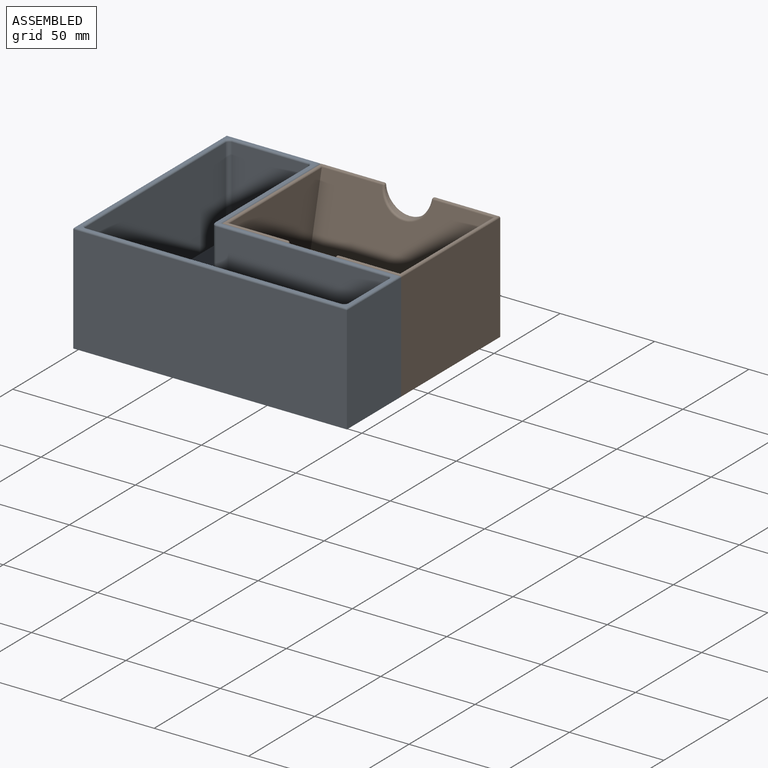
[diagram: assembled view]
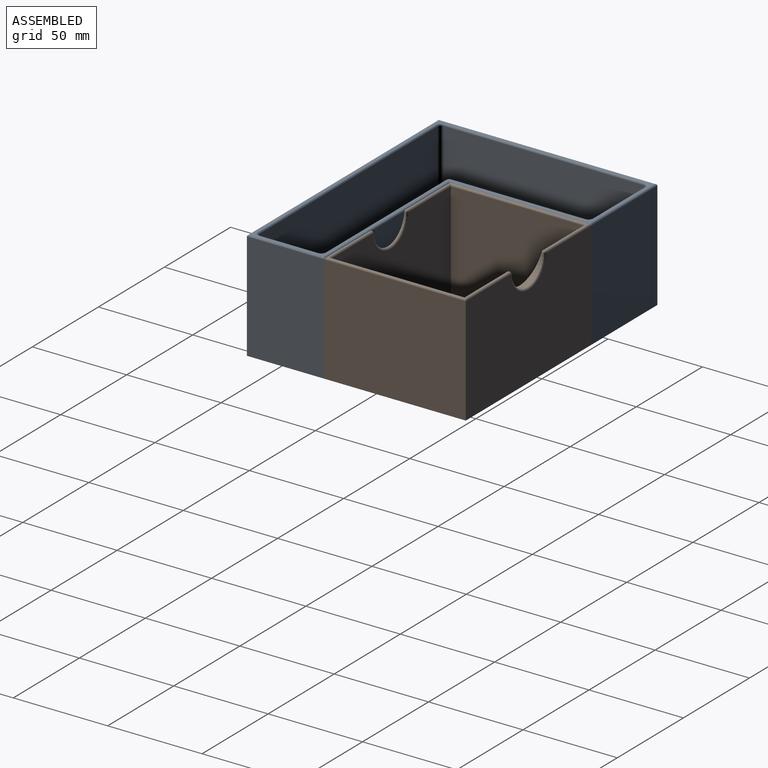
[diagram: assembled view, second angle]
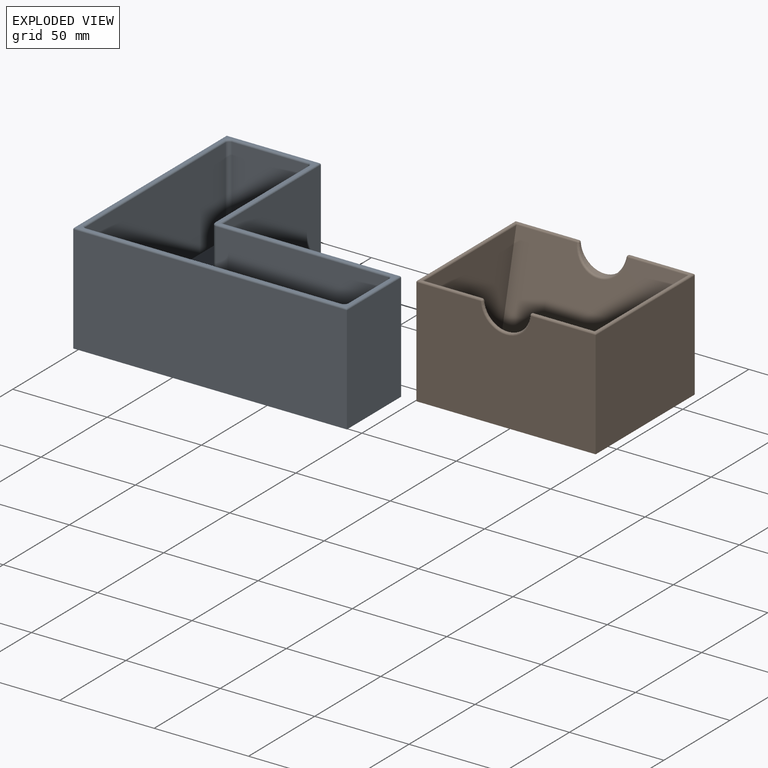
[diagram: exploded view]
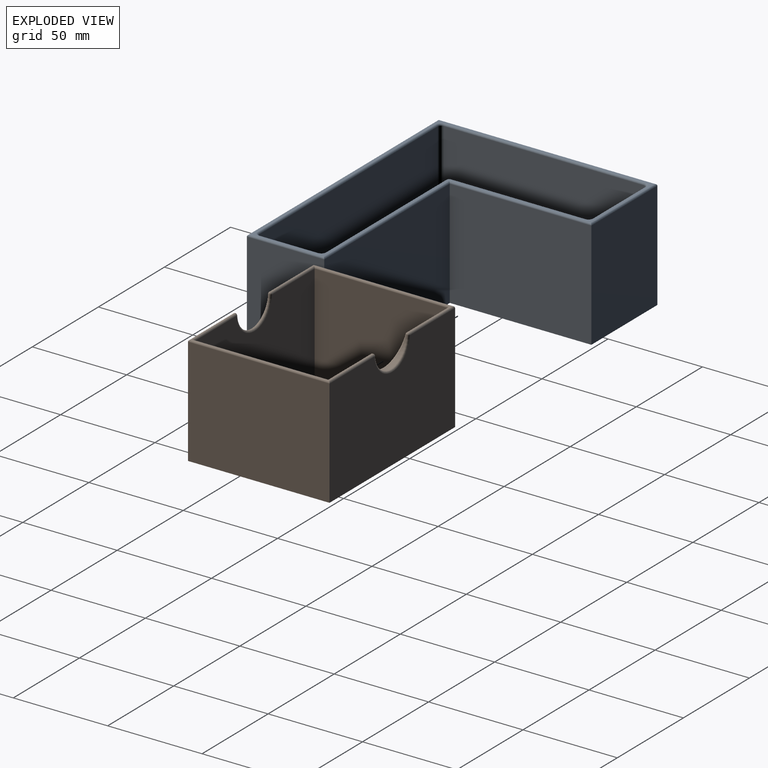
[diagram: exploded view, second angle]
ASSEMBLY  parts=2 mates=3
PART A: 59 faces, bbox 145x116x58 mm
  f0: plane 143x114mm, normal (0,0,1), area 519.4mm2, adj f41,f42,f43,f44,f45,f46,f47,f48
  f1: plane 57x50mm, normal (0,1,0), area 2850mm2, adj f2,f6,f7,f55
  f2: plane 116x57mm, normal (-1,0,0), area 6612mm2, adj f1,f3,f7,f53
  f3: plane 145x57mm, normal (0,-1,0), area 8265mm2, adj f2,f4,f7,f54
  f4: plane 57x41mm, normal (1,0,0), area 2337mm2, adj f3,f5,f7,f56
  f5: plane 95x57mm, normal (0,1,0), area 5415mm2, adj f4,f6,f7,f58
  f6: plane 75x57mm, normal (1,0,0), area 4275mm2, adj f1,f5,f7,f57
  f7: plane 145x116mm, normal (0,0,-1), area 9695mm2, adj f1,f2,f3,f4,f5,f6
  f8: plane 46x40mm, normal (0,-1,0), area 1840mm2, adj f14,f38,f40,f51
  f9: plane 106x46mm, normal (1,0,0), area 4876mm2, adj f14,f35,f40,f50
  f10: plane 135x46mm, normal (0,1,0), area 6210mm2, adj f14,f35,f36,f46
  f11: plane 46x31mm, normal (-1,0,0), area 1426mm2, adj f14,f36,f39,f42
  f12: plane 91x46mm, normal (0,-1,0), area 4186mm2, adj f14,f37,f39,f43
  f13: plane 71x46mm, normal (-1,0,0), area 3266mm2, adj f14,f37,f38,f47
  f14: plane 139x110mm, normal (0,0,1), area 5506.9mm2, adj f8,f9,f10,f11,f12,f13,f15,f17
  f15: cylinder r=13mm len=26mm, axis (0,0,1), area 81.7mm2, adj f14,f16
  f16: plane 26x26mm, normal (0,0,1), area 452.4mm2, adj f15,f33
  f17: cylinder r=13mm len=26mm, axis (0,0,1), area 81.7mm2, adj f14,f18
  f18: plane 26x26mm, normal (0,0,1), area 452.4mm2, adj f17,f31
  f19: cylinder r=13mm len=26mm, axis (0,0,1), area 81.7mm2, adj f14,f20
  f20: plane 26x26mm, normal (0,0,1), area 452.4mm2, adj f19,f29
  f21: cylinder r=13mm len=26mm, axis (0,0,1), area 81.7mm2, adj f14,f22
  f22: plane 26x26mm, normal (0,0,1), area 452.4mm2, adj f21,f27
  f23: cylinder r=13mm len=26mm, axis (0,0,1), area 81.7mm2, adj f14,f24
  f24: plane 26x26mm, normal (0,0,1), area 452.4mm2, adj f23,f25
  f25: cylinder r=5mm len=10mm, axis (0,0,1), area 62.8mm2, adj f24,f26
  f26: plane 10x10mm, normal (0,0,1), area 78.5mm2, adj f25
  f27: cylinder r=5mm len=10mm, axis (0,0,1), area 62.8mm2, adj f22,f28
  f28: plane 10x10mm, normal (0,0,1), area 78.5mm2, adj f27
  f29: cylinder r=5mm len=10mm, axis (0,0,1), area 62.8mm2, adj f20,f30
  f30: plane 10x10mm, normal (0,0,1), area 78.5mm2, adj f29
  f31: cylinder r=5mm len=10mm, axis (0,0,1), area 62.8mm2, adj f18,f32
  f32: plane 10x10mm, normal (0,0,1), area 78.5mm2, adj f31
  f33: cylinder r=5mm len=10mm, axis (0,0,1), area 62.8mm2, adj f16,f34
  f34: plane 10x10mm, normal (0,0,1), area 78.5mm2, adj f33
  f35: cylinder r=2mm len=46mm, axis (0,0,1), area 144.5mm2, adj f9,f10,f14,f48
  f36: cylinder r=2mm len=46mm, axis (0,0,-1), area 144.5mm2, adj f10,f11,f14,f44
  f37: cylinder r=2mm len=46mm, axis (0,0,1), area 144.5mm2, adj f12,f13,f14,f45
  f38: cylinder r=2mm len=46mm, axis (0,0,1), area 144.5mm2, adj f8,f13,f14,f49
  f39: cylinder r=2mm len=46mm, axis (0,0,-1), area 144.5mm2, adj f11,f12,f14,f41
  f40: cylinder r=2mm len=46mm, axis (0,0,-1), area 144.5mm2, adj f8,f9,f14,f52
  f41: torus R=3mm, axis (0,0,1), area 5.8mm2, adj f0,f39,f42,f43
  f42: cylinder r=1mm len=31mm, axis (0,1,0), area 48.7mm2, adj f0,f11,f41,f44
  f43: cylinder r=1mm len=91mm, axis (-1,0,0), area 142.9mm2, adj f0,f12,f41,f45
  f44: torus R=3mm, axis (0,0,1), area 5.8mm2, adj f0,f36,f42,f46
  f45: torus R=1mm, axis (0,0,1), area 4mm2, adj f0,f37,f43,f47
  f46: cylinder r=1mm len=135mm, axis (1,0,0), area 212.1mm2, adj f0,f10,f44,f48
  f47: cylinder r=1mm len=71mm, axis (0,1,0), area 111.5mm2, adj f0,f13,f45,f49
  f48: torus R=3mm, axis (0,0,1), area 5.8mm2, adj f0,f35,f46,f50
  f49: torus R=3mm, axis (0,0,1), area 5.8mm2, adj f0,f38,f47,f51
  f50: cylinder r=1mm len=106mm, axis (0,-1,0), area 166.5mm2, adj f0,f9,f48,f52
  f51: cylinder r=1mm len=40mm, axis (-1,0,0), area 62.8mm2, adj f0,f8,f49,f52
  f52: torus R=3mm, axis (0,0,1), area 5.8mm2, adj f0,f40,f50,f51
  f53: cylinder r=1mm len=116mm, axis (0,1,0), area 181.1mm2, adj f0,f2,f54,f55
  f54: cylinder r=1mm len=145mm, axis (-1,0,0), area 226.6mm2, adj f0,f3,f53,f56
  f55: cylinder r=1mm len=50mm, axis (1,0,0), area 77.4mm2, adj f0,f1,f53,f57
  f56: cylinder r=1mm len=41mm, axis (0,-1,0), area 63.3mm2, adj f0,f4,f54,f58
  f57: cylinder r=1mm len=76mm, axis (0,-1,0), area 117.8mm2, adj f0,f6,f55,f58
  f58: cylinder r=1mm len=96mm, axis (1,0,0), area 149.2mm2, adj f0,f5,f56,f57
PART B: 261 faces, bbox 95x75x58 mm
  f0: plane 91x58mm, normal (0,0,1), area 4798.4mm2, adj f9,f10,f11,f12,f13,f14,f15,f16
  f1: cylinder r=12.5mm len=24.93mm, axis (0,-1,0), area 77.1mm2, adj f251,f254,f257,f260
  f2: plane 33.04x0.21mm, normal (0,0,1), area 6.8mm2, adj f249,f250,f256,f257
  f3: plane 95x57mm, normal (0,-1,0), area 5155.7mm2, adj f5,f6,f8,f242,f245,f246
  f4: plane 95x57mm, normal (0,1,0), area 5155.7mm2, adj f5,f6,f8,f247,f250,f251
  f5: plane 75x57mm, normal (-1,0,0), area 4275mm2, adj f3,f4,f8,f249
  f6: plane 75x57mm, normal (1,0,0), area 4275mm2, adj f3,f4,f8,f248
  f7: plane 33.04x0.21mm, normal (0,0,1), area 6.8mm2, adj f247,f248,f254,f255
  f8: plane 95x75mm, normal (0,0,-1), area 7125mm2, adj f3,f4,f5,f6
  f9: plane 91x55mm, normal (0,1,0), area 4745.7mm2, adj f0,f10,f11,f242,f245,f246
  f10: plane 70.77x55mm, normal (1,0,0), area 3541.1mm2, adj f0,f9,f12,f249
  f11: plane 70.77x55mm, normal (-1,0,0), area 3541.1mm2, adj f0,f9,f12,f248
  f12: plane 91.05x55.23mm, normal (0,-0.97,0.23), area 4893mm2, adj f0,f10,f11,f248,f249,f255,f256,f260
  f13: extruded ~2x1mm, area 2.3mm2, adj f0,f14,f37,f38
  f14: extruded ~1.62x1mm, area 1.8mm2, adj f0,f13,f15,f38
  f15: extruded ~2.1x1.17mm, area 2.4mm2, adj f0,f14,f16,f38
  f16: extruded ~1.35x1mm, area 1.5mm2, adj f0,f15,f17,f38
  f17: extruded ~1x0.63mm, area 0.9mm2, adj f0,f16,f18,f38
  f18: extruded ~1x0.83mm, area 0.9mm2, adj f0,f17,f19,f38
  f19: extruded ~1.07x1mm, area 1.2mm2, adj f0,f18,f20,f38
  f20: extruded ~1.4x1mm, area 1.5mm2, adj f0,f19,f21,f38
  f21: extruded ~2.34x1mm, area 2.4mm2, adj f0,f20,f22,f38
  f22: plane 1x0.98mm, normal (-0.94,0.34,0), area 1mm2, adj f0,f21,f23,f38
  f23: extruded ~2.66x1mm, area 2.7mm2, adj f0,f22,f24,f38
  f24: extruded ~2.23x1mm, area 2.4mm2, adj f0,f23,f25,f38
  f25: extruded ~1.78x1mm, area 2mm2, adj f0,f24,f26,f38
  f26: extruded ~1.73x1mm, area 1.9mm2, adj f0,f25,f27,f38
  f27: extruded ~1.93x1.15mm, area 2.3mm2, adj f0,f26,f28,f38
  f28: extruded ~1.44x1mm, area 1.6mm2, adj f0,f27,f29,f38
  f29: extruded ~1x0.68mm, area 0.9mm2, adj f0,f28,f30,f38
  f30: extruded ~1x0.83mm, area 0.9mm2, adj f0,f29,f31,f38
  f31: extruded ~1.19x1mm, area 1.4mm2, adj f0,f30,f32,f38
  f32: extruded ~1.7x1mm, area 1.8mm2, adj f0,f31,f33,f38
  f33: extruded ~1.39x1mm, area 1.4mm2, adj f0,f32,f34,f38
  f34: extruded ~1.3x1mm, area 1.4mm2, adj f0,f33,f35,f38
  f35: plane 1.09x1mm, normal (1,0,0), area 1.1mm2, adj f0,f34,f36,f38
  f36: extruded ~2.65x1mm, area 2.7mm2, adj f0,f35,f37,f38
  f37: extruded ~2.52x1mm, area 2.7mm2, adj f0,f13,f36,f38
  f38: plane 9.97x6.1mm, normal (0,0,1), area 21.8mm2, adj f13,f14,f15,f16,f17,f18,f19,f20
  f39: extruded ~2.52x1.06mm, area 2.8mm2, adj f0,f40,f53,f54
  f40: extruded ~2.2x1mm, area 2.3mm2, adj f0,f39,f41,f54
  f41: plane 1x0.97mm, normal (-0.9,0.44,0), area 1.1mm2, adj f0,f40,f42,f54
  f42: extruded ~2.67x1mm, area 2.7mm2, adj f0,f41,f43,f54
  f43: extruded ~2.49x1mm, area 2.6mm2, adj f0,f42,f44,f54
  f44: extruded ~1.74x1.62mm, area 2.4mm2, adj f0,f43,f45,f54
  f45: extruded ~2.63x1mm, area 2.7mm2, adj f0,f44,f46,f54
  f46: extruded ~3.7x1.16mm, area 4mm2, adj f0,f45,f47,f54
  f47: extruded ~3.31x1.3mm, area 3.7mm2, adj f0,f46,f48,f54
  f48: extruded ~2.49x1mm, area 2.5mm2, adj f0,f47,f49,f54
  f49: plane 1x0.99mm, normal (-1,0,0), area 1mm2, adj f0,f48,f50,f54
  f50: extruded ~2.32x1mm, area 2.4mm2, adj f0,f49,f51,f54
  f51: extruded ~2.54x1.04mm, area 2.8mm2, adj f0,f50,f52,f54
  f52: extruded ~2.94x1mm, area 3.1mm2, adj f0,f51,f53,f54
  f53: extruded ~2.92x1mm, area 3.1mm2, adj f0,f39,f52,f54
  f54: plane 9.97x7.34mm, normal (0,0,1), area 20.6mm2, adj f39,f40,f41,f42,f43,f44,f45,f46
  f55: plane 5.53x1mm, normal (0,1,0), area 5.5mm2, adj f0,f56,f66,f67
  f56: plane 1.03x1mm, normal (-1,0,0), area 1mm2, adj f0,f55,f57,f67
  f57: plane 4.38x1mm, normal (0,-1,0), area 4.4mm2, adj f0,f56,f58,f67
  f58: plane 3.65x1mm, normal (-1,0,0), area 3.6mm2, adj f0,f57,f59,f67
  f59: plane 4.11x1mm, normal (0,1,0), area 4.1mm2, adj f0,f58,f60,f67
  f60: plane 1.02x1mm, normal (-1,0,0), area 1mm2, adj f0,f59,f61,f67
  f61: plane 4.11x1mm, normal (0,-1,0), area 4.1mm2, adj f0,f60,f62,f67
  f62: plane 3.19x1mm, normal (-1,0,0), area 3.2mm2, adj f0,f61,f63,f67
  f63: plane 4.38x1mm, normal (0,1,0), area 4.4mm2, adj f0,f62,f64,f67
  f64: plane 1.02x1mm, normal (-1,0,0), area 1mm2, adj f0,f63,f65,f67
  f65: plane 5.53x1mm, normal (0,-1,0), area 5.5mm2, adj f0,f64,f66,f67
  f66: plane 9.92x1mm, normal (1,0,0), area 9.9mm2, adj f0,f55,f65,f67
  f67: plane 9.92x5.53mm, normal (0,0,1), area 24.6mm2, adj f55,f56,f57,f58,f59,f60,f61,f62
  f68: plane 1.15x1mm, normal (0,1,0), area 1.2mm2, adj f0,f69,f75,f76
  f69: plane 8.89x1mm, normal (-1,0,0), area 8.9mm2, adj f0,f68,f70,f76
  f70: plane 3.14x1mm, normal (0,1,0), area 3.1mm2, adj f0,f69,f71,f76
  f71: plane 1.02x1mm, normal (-1,0,0), area 1mm2, adj f0,f70,f72,f76
  f72: plane 7.43x1mm, normal (0,-1,0), area 7.4mm2, adj f0,f71,f73,f76
  f73: plane 1.02x1mm, normal (1,0,0), area 1mm2, adj f0,f72,f74,f76
  f74: plane 3.14x1mm, normal (0,1,0), area 3.1mm2, adj f0,f73,f75,f76
  f75: plane 8.89x1mm, normal (1,0,0), area 8.9mm2, adj f0,f68,f74,f76
  f76: plane 9.92x7.43mm, normal (0,0,1), area 17.9mm2, adj f68,f69,f70,f71,f72,f73,f74,f75
  f77: plane 1.32x1mm, normal (0,1,0), area 1.3mm2, adj f0,f78,f91,f92
  f78: plane 9.92x1mm, normal (-1,0,0), area 9.9mm2, adj f0,f77,f79,f92
  f79: plane 1.08x1mm, normal (0,-1,0), area 1.1mm2, adj f0,f78,f80,f92
  f80: plane 5.69x1mm, normal (1,0,0), area 5.7mm2, adj f0,f79,f81,f92
  f81: extruded ~1.42x1mm, area 1.4mm2, adj f0,f80,f82,f92
  f82: extruded ~1.18x1mm, area 1.2mm2, adj f0,f81,f83,f92
  f83: plane 1x0.05mm, normal (0,-1,0), area 0.1mm2, adj f0,f82,f84,f92
  f84: plane 8.29x5.41mm, normal (-0.84,-0.55,0), area 9.9mm2, adj f0,f83,f85,f92
  f85: plane 1.3x1mm, normal (0,-1,0), area 1.3mm2, adj f0,f84,f86,f92
  f86: plane 9.92x1mm, normal (1,0,0), area 9.9mm2, adj f0,f85,f87,f92
  f87: plane 1.07x1mm, normal (0,1,0), area 1.1mm2, adj f0,f86,f88,f92
  f88: plane 5.64x1mm, normal (-1,0,0), area 5.6mm2, adj f0,f87,f89,f92
  f89: extruded ~2.68x1mm, area 2.7mm2, adj f0,f88,f90,f92
  f90: plane 1x0.05mm, normal (0,1,0), area 0.1mm2, adj f0,f89,f91,f92
  f91: plane 8.32x5.42mm, normal (0.84,0.55,0), area 9.9mm2, adj f0,f77,f90,f92
  f92: plane 9.92x7.75mm, normal (0,0,1), area 32.5mm2, adj f77,f78,f79,f80,f81,f82,f83,f84
  f93: plane 6.42x1mm, normal (-1,0,0), area 6.4mm2, adj f0,f94,f106,f107
  f94: plane 1.15x1mm, normal (0,-1,0), area 1.2mm2, adj f0,f93,f95,f107
  f95: plane 6.46x1mm, normal (1,0,0), area 6.5mm2, adj f0,f94,f96,f107
  f96: extruded ~1.92x1mm, area 2.1mm2, adj f0,f95,f97,f107
  f97: extruded ~1.93x1mm, area 2.1mm2, adj f0,f96,f98,f107
  f98: extruded ~1.99x1mm, area 2.2mm2, adj f0,f97,f99,f107
  f99: extruded ~1.91x1mm, area 2.1mm2, adj f0,f98,f100,f107
  f100: plane 6.47x1mm, normal (-1,0,0), area 6.5mm2, adj f0,f99,f101,f107
  f101: plane 1.15x1mm, normal (0,-1,0), area 1.2mm2, adj f0,f100,f102,f107
  f102: plane 6.39x1mm, normal (1,0,0), area 6.4mm2, adj f0,f101,f103,f107
  f103: extruded ~2.69x1mm, area 2.9mm2, adj f0,f102,f104,f107
  f104: extruded ~2.77x1mm, area 3mm2, adj f0,f103,f105,f107
  f105: extruded ~2.81x1mm, area 3.1mm2, adj f0,f104,f106,f107
  f106: extruded ~2.67x1.02mm, area 2.9mm2, adj f0,f93,f105,f107
  f107: plane 10.05x7.59mm, normal (0,0,1), area 25.9mm2, adj f93,f94,f95,f96,f97,f98,f99,f100
  f108: extruded ~2.58x1.09mm, area 2.9mm2, adj f0,f109,f122,f123
  f109: extruded ~2.25x1mm, area 2.3mm2, adj f0,f108,f110,f123
  f110: plane 1x0.99mm, normal (-0.9,0.44,0), area 1.1mm2, adj f0,f109,f111,f123
  f111: extruded ~2.73x1mm, area 2.8mm2, adj f0,f110,f112,f123
  f112: extruded ~2.55x1mm, area 2.7mm2, adj f0,f111,f113,f123
  f113: extruded ~1.78x1.65mm, area 2.5mm2, adj f0,f112,f114,f123
  f114: extruded ~2.68x1mm, area 2.8mm2, adj f0,f113,f115,f123
  f115: extruded ~3.78x1.19mm, area 4.1mm2, adj f0,f114,f116,f123
  f116: extruded ~3.38x1.33mm, area 3.7mm2, adj f0,f115,f117,f123
  f117: extruded ~2.54x1mm, area 2.6mm2, adj f0,f116,f118,f123
  f118: plane 1.01x1mm, normal (-1,0,0), area 1mm2, adj f0,f117,f119,f123
  f119: extruded ~2.37x1mm, area 2.4mm2, adj f0,f118,f120,f123
  f120: extruded ~2.6x1.06mm, area 2.9mm2, adj f0,f119,f121,f123
  f121: extruded ~3.01x1mm, area 3.2mm2, adj f0,f120,f122,f123
  f122: extruded ~2.98x1mm, area 3.2mm2, adj f0,f108,f121,f123
  f123: plane 10.19x7.5mm, normal (0,0,1), area 21.5mm2, adj f108,f109,f110,f111,f112,f113,f114,f115
  f124: plane 1.32x1mm, normal (0,1,0), area 1.3mm2, adj f0,f125,f138,f139
  f125: plane 9.92x1mm, normal (-1,0,0), area 9.9mm2, adj f0,f124,f126,f139
  f126: plane 1.08x1mm, normal (0,-1,0), area 1.1mm2, adj f0,f125,f127,f139
  f127: plane 5.69x1mm, normal (1,0,0), area 5.7mm2, adj f0,f126,f128,f139
  f128: extruded ~1.42x1mm, area 1.4mm2, adj f0,f127,f129,f139
  f129: extruded ~1.18x1mm, area 1.2mm2, adj f0,f128,f130,f139
  f130: plane 1x0.05mm, normal (0,-1,0), area 0.1mm2, adj f0,f129,f131,f139
  f131: plane 8.29x5.41mm, normal (-0.84,-0.55,0), area 9.9mm2, adj f0,f130,f132,f139
  f132: plane 1.3x1mm, normal (0,-1,0), area 1.3mm2, adj f0,f131,f133,f139
  f133: plane 9.92x1mm, normal (1,0,0), area 9.9mm2, adj f0,f132,f134,f139
  f134: plane 1.07x1mm, normal (0,1,0), area 1.1mm2, adj f0,f133,f135,f139
  f135: plane 5.64x1mm, normal (-1,0,0), area 5.6mm2, adj f0,f134,f136,f139
  f136: extruded ~2.68x1mm, area 2.7mm2, adj f0,f135,f137,f139
  f137: plane 1x0.05mm, normal (0,1,0), area 0.1mm2, adj f0,f136,f138,f139
  f138: plane 8.32x5.42mm, normal (0.84,0.55,0), area 9.9mm2, adj f0,f124,f137,f139
  f139: plane 9.92x7.75mm, normal (0,0,1), area 32.5mm2, adj f124,f125,f126,f127,f128,f129,f130,f131
  f140: extruded ~2.86x1mm, area 3.1mm2, adj f141,f153,f154,f237
  f141: extruded ~2.94x1.02mm, area 3.2mm2, adj f140,f142,f154,f237
  f142: extruded ~3.03x1mm, area 3.3mm2, adj f141,f143,f154,f237
  f143: plane 1.37x1mm, normal (0,-1,0), area 1.4mm2, adj f142,f144,f154,f237
  f144: plane 7.75x1mm, normal (-1,0,0), area 7.7mm2, adj f143,f145,f154,f237
  f145: plane 1.64x1mm, normal (0,1,0), area 1.6mm2, adj f144,f153,f154,f237
  f146: extruded ~3.67x1.3mm, area 4mm2, adj f0,f147,f152,f154
  f147: extruded ~3.5x1.25mm, area 3.8mm2, adj f0,f146,f148,f154
  f148: extruded ~3.52x1.25mm, area 3.8mm2, adj f0,f147,f149,f154
  f149: plane 2.97x1mm, normal (0,-1,0), area 3mm2, adj f0,f148,f150,f154
  f150: plane 9.7x1mm, normal (1,0,0), area 9.7mm2, adj f0,f149,f151,f154
  f151: plane 2.69x1mm, normal (0,1,0), area 2.7mm2, adj f0,f150,f152,f154
  f152: extruded ~3.75x1.27mm, area 4.1mm2, adj f0,f146,f151,f154
  f153: extruded ~2.83x1mm, area 3.1mm2, adj f140,f145,f154,f237
  f154: plane 9.7x7.74mm, normal (0,0,1), area 29.8mm2, adj f140,f141,f142,f143,f144,f145,f146,f147
  f155: plane 1.55x1mm, normal (0,-1,0), area 1.5mm2, adj f156,f172,f173,f238
  f156: plane 3.71x1mm, normal (-1,0,0), area 3.7mm2, adj f155,f157,f173,f238
  f157: plane 1.47x1mm, normal (0,1,0), area 1.5mm2, adj f156,f158,f173,f238
  f158: extruded ~1.82x1mm, area 1.9mm2, adj f157,f159,f173,f238
  f159: extruded ~1.39x1mm, area 1.6mm2, adj f158,f160,f173,f238
  f160: extruded ~1.42x1mm, area 1.6mm2, adj f159,f172,f173,f238
  f161: plane 4.03x1mm, normal (-1,0,0), area 4mm2, adj f0,f162,f171,f173
  f162: plane 2.03x1mm, normal (0,1,0), area 2mm2, adj f0,f161,f163,f173
  f163: plane 4.03x2.35mm, normal (0.86,0.5,0), area 4.7mm2, adj f0,f162,f164,f173
  f164: plane 1.33x1mm, normal (0,1,0), area 1.3mm2, adj f0,f163,f165,f173
  f165: plane 4.36x2.63mm, normal (-0.86,-0.52,0), area 5.1mm2, adj f0,f164,f166,f173
  f166: extruded ~2.6x1.95mm, area 3.5mm2, adj f0,f165,f167,f173
  f167: extruded ~2.06x1mm, area 2.3mm2, adj f0,f166,f168,f173
  f168: extruded ~2.64x1mm, area 2.8mm2, adj f0,f167,f169,f173
  f169: plane 2.66x1mm, normal (0,-1,0), area 2.7mm2, adj f0,f168,f170,f173
  f170: plane 9.7x1mm, normal (1,0,0), area 9.7mm2, adj f0,f169,f171,f173
  f171: plane 1.13x1mm, normal (0,1,0), area 1.1mm2, adj f0,f161,f170,f173
  f172: extruded ~1.75x1mm, area 1.9mm2, adj f155,f160,f173,f238
  f173: plane 9.7x6.83mm, normal (0,0,1), area 28.2mm2, adj f155,f156,f157,f158,f159,f160,f161,f162
  f174: plane 3.01x1.13mm, normal (0.94,0.35,0), area 3.2mm2, adj f175,f186,f187,f239
  f175: plane 3.14x1mm, normal (0,-1,0), area 3.1mm2, adj f174,f176,f187,f239
  f176: plane 3.01x1.14mm, normal (-0.94,0.35,0), area 3.2mm2, adj f175,f177,f187,f239
  f177: extruded ~1.4x1mm, area 1.5mm2, adj f176,f186,f187,f239
  f178: plane 3.09x1.21mm, normal (0.93,0.36,0), area 3.3mm2, adj f0,f179,f185,f187
  f179: plane 1.17x1mm, normal (0,1,0), area 1.2mm2, adj f0,f178,f180,f187
  f180: plane 9.74x3.82mm, normal (-0.93,-0.36,0), area 10.5mm2, adj f0,f179,f181,f187
  f181: plane 1x0.95mm, normal (0,-1,0), area 0.9mm2, adj f0,f180,f182,f187
  f182: plane 9.74x3.83mm, normal (0.93,-0.37,0), area 10.5mm2, adj f0,f181,f183,f187
  f183: plane 1.14x1mm, normal (0,1,0), area 1.1mm2, adj f0,f182,f184,f187
  f184: plane 3.09x1.19mm, normal (-0.93,0.36,0), area 3.3mm2, adj f0,f183,f185,f187
  f185: plane 3.89x1mm, normal (0,1,0), area 3.9mm2, adj f0,f178,f184,f187
  f186: extruded ~1.4x1mm, area 1.5mm2, adj f174,f177,f187,f239
  f187: plane 9.74x8.6mm, normal (0,0,1), area 24.2mm2, adj f174,f175,f176,f177,f178,f179,f180,f181
  f188: plane 1.58x1mm, normal (0,-1,0), area 1.6mm2, adj f189,f205,f206,f240
  f189: plane 3.79x1mm, normal (-1,0,0), area 3.8mm2, adj f188,f190,f206,f240
  f190: plane 1.5x1mm, normal (0,1,0), area 1.5mm2, adj f189,f191,f206,f240
  f191: extruded ~1.86x1mm, area 1.9mm2, adj f190,f192,f206,f240
  f192: extruded ~1.42x1mm, area 1.6mm2, adj f191,f193,f206,f240
  f193: extruded ~1.46x1mm, area 1.6mm2, adj f192,f205,f206,f240
  f194: plane 4.12x1mm, normal (-1,0,0), area 4.1mm2, adj f0,f195,f204,f206
  f195: plane 2.07x1mm, normal (0,1,0), area 2.1mm2, adj f0,f194,f196,f206
  f196: plane 4.12x2.4mm, normal (0.86,0.5,0), area 4.8mm2, adj f0,f195,f197,f206
  f197: plane 1.36x1mm, normal (0,1,0), area 1.4mm2, adj f0,f196,f198,f206
  f198: plane 4.46x2.69mm, normal (-0.86,-0.52,0), area 5.2mm2, adj f0,f197,f199,f206
  f199: extruded ~2.66x1.99mm, area 3.6mm2, adj f0,f198,f200,f206
  f200: extruded ~2.1x1mm, area 2.4mm2, adj f0,f199,f201,f206
  f201: extruded ~2.7x1mm, area 2.8mm2, adj f0,f200,f202,f206
  f202: plane 2.72x1mm, normal (0,-1,0), area 2.7mm2, adj f0,f201,f203,f206
  f203: plane 9.92x1mm, normal (1,0,0), area 9.9mm2, adj f0,f202,f204,f206
  f204: plane 1.15x1mm, normal (0,1,0), area 1.2mm2, adj f0,f194,f203,f206
  f205: extruded ~1.79x1mm, area 1.9mm2, adj f188,f193,f206,f240
  f206: plane 9.92x6.99mm, normal (0,0,1), area 29.5mm2, adj f188,f189,f190,f191,f192,f193,f194,f195
  f207: extruded ~3.06x1mm, area 3.2mm2, adj f208,f222,f223,f241
  f208: extruded ~3.03x1mm, area 3.2mm2, adj f207,f209,f223,f241
  f209: extruded ~2.51x1.04mm, area 2.8mm2, adj f208,f210,f223,f241
  f210: extruded ~2.48x1.03mm, area 2.8mm2, adj f209,f211,f223,f241
  f211: extruded ~3.04x1mm, area 3.2mm2, adj f210,f212,f223,f241
  f212: extruded ~3.06x1mm, area 3.2mm2, adj f211,f213,f223,f241
  f213: extruded ~2.49x1.04mm, area 2.8mm2, adj f212,f222,f223,f241
  f214: extruded ~3.74x1.2mm, area 4mm2, adj f0,f215,f221,f223
  f215: extruded ~3.74x1.2mm, area 4mm2, adj f0,f214,f216,f223
  f216: extruded ~3.34x1.36mm, area 3.7mm2, adj f0,f215,f217,f223
  f217: extruded ~3.39x1.33mm, area 3.8mm2, adj f0,f216,f218,f223
  f218: extruded ~3.75x1.19mm, area 4mm2, adj f0,f217,f219,f223
  f219: extruded ~3.78x1.19mm, area 4.1mm2, adj f0,f218,f220,f223
  f220: extruded ~3.38x1.34mm, area 3.8mm2, adj f0,f219,f221,f223
  f221: extruded ~3.35x1.36mm, area 3.7mm2, adj f0,f214,f220,f223
  f222: extruded ~2.49x1.04mm, area 2.8mm2, adj f207,f213,f223,f241
  f223: plane 10.21x9.12mm, normal (0,0,1), area 31.1mm2, adj f207,f208,f209,f210,f211,f212,f213,f214
  f224: plane 5.53x1mm, normal (0,1,0), area 5.5mm2, adj f0,f225,f235,f236
  f225: plane 1.03x1mm, normal (-1,0,0), area 1mm2, adj f0,f224,f226,f236
  f226: plane 4.38x1mm, normal (0,-1,0), area 4.4mm2, adj f0,f225,f227,f236
  f227: plane 3.65x1mm, normal (-1,0,0), area 3.6mm2, adj f0,f226,f228,f236
  f228: plane 4.11x1mm, normal (0,1,0), area 4.1mm2, adj f0,f227,f229,f236
  f229: plane 1.02x1mm, normal (-1,0,0), area 1mm2, adj f0,f228,f230,f236
  f230: plane 4.11x1mm, normal (0,-1,0), area 4.1mm2, adj f0,f229,f231,f236
  f231: plane 3.19x1mm, normal (-1,0,0), area 3.2mm2, adj f0,f230,f232,f236
  f232: plane 4.38x1mm, normal (0,1,0), area 4.4mm2, adj f0,f231,f233,f236
  f233: plane 1.02x1mm, normal (-1,0,0), area 1mm2, adj f0,f232,f234,f236
  f234: plane 5.53x1mm, normal (0,-1,0), area 5.5mm2, adj f0,f233,f235,f236
  f235: plane 9.92x1mm, normal (1,0,0), area 9.9mm2, adj f0,f224,f234,f236
  f236: plane 9.92x5.53mm, normal (0,0,1), area 24.6mm2, adj f224,f225,f226,f227,f228,f229,f230,f231
  f237: plane 7.75x5.42mm, normal (0,0,1), area 36.9mm2, adj f140,f141,f142,f143,f144,f145,f153
  f238: plane 3.86x3.71mm, normal (0,0,1), area 12.9mm2, adj f155,f156,f157,f158,f159,f160,f172
  f239: plane 4.41x3.14mm, normal (0,0,1), area 6.6mm2, adj f174,f175,f176,f177,f186
  f240: plane 3.94x3.79mm, normal (0,0,1), area 13.5mm2, adj f188,f189,f190,f191,f192,f193,f205
  f241: plane 8.17x6.68mm, normal (0,0,1), area 45.2mm2, adj f207,f208,f209,f210,f211,f212,f213,f222
  f242: torus R=13.5mm, axis (0,1,0), area 121mm2, adj f3,f9,f243,f244
  f243: sphere r=1mm, area 3mm2, adj f242,f245
  f244: sphere r=1mm, area 3mm2, adj f242,f246
  f245: cylinder r=1mm len=34.04mm, axis (-1,0,0), area 103.8mm2, adj f3,f9,f243,f248
  f246: cylinder r=1mm len=34.04mm, axis (-1,0,0), area 103.8mm2, adj f3,f9,f244,f249
  f247: cylinder r=1mm len=34.04mm, axis (1,0,0), area 52.9mm2, adj f4,f7,f248,f252
  f248: cylinder r=1mm len=75mm, axis (0,-1,0), area 229mm2, adj f6,f7,f11,f12,f245,f247,f255
  f249: cylinder r=1mm len=75mm, axis (0,1,0), area 229mm2, adj f2,f5,f10,f12,f246,f250,f256
  f250: cylinder r=1mm len=34.04mm, axis (1,0,0), area 52.9mm2, adj f2,f4,f249,f253
  f251: torus R=13.5mm, axis (0,1,0), area 60.5mm2, adj f1,f4,f252,f253
  f252: sphere r=1mm, area 1.5mm2, adj f247,f251,f254
  f253: sphere r=1mm, area 1.5mm2, adj f250,f251,f257
  f254: cylinder r=1mm len=1mm, axis (0,-1,0), area 0.3mm2, adj f1,f7,f252,f258
  f255: cylinder r=1mm len=33.04mm, axis (-1,0,0), area 43.6mm2, adj f7,f12,f248,f258
  f256: cylinder r=1mm len=33.04mm, axis (-1,0,0), area 43.6mm2, adj f2,f12,f249,f259
  f257: cylinder r=1mm len=1mm, axis (0,-1,0), area 0.3mm2, adj f1,f2,f253,f259
  f258: sphere r=1mm, area 1.3mm2, adj f254,f255,f260
  f259: sphere r=1mm, area 1.3mm2, adj f256,f257,f260
  f260: bspline ~26.93x12.51mm, area 55.6mm2, adj f1,f12,f258,f259
PLACE A t=(-40.3,-20.75,-55.52)mm
PLACE B t=(-15.3,-0.25,-55.52)mm
MATE planar A.f4 <-> B.f6  axis (1,0,0) through (32.2,-58.25,-27.02)mm
MATE planar A.f1 <-> B.f4  axis (0,1,0) through (-87.8,37.25,-27.02)mm
MATE planar A.f7 <-> B.f8  axis (0,0,-1) through (-58.68,-35.81,-55.52)mm
